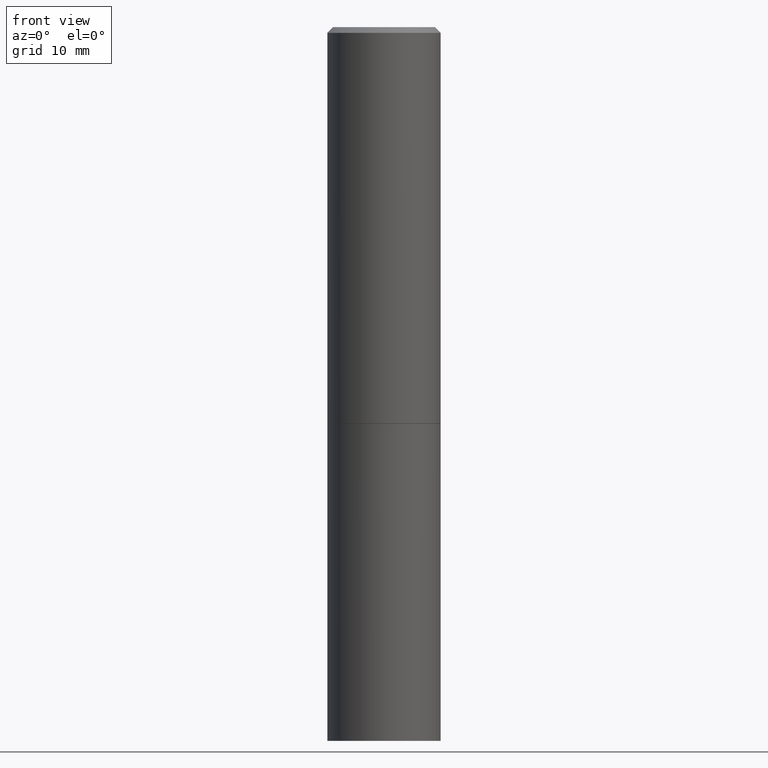
[diagram: clean part render]
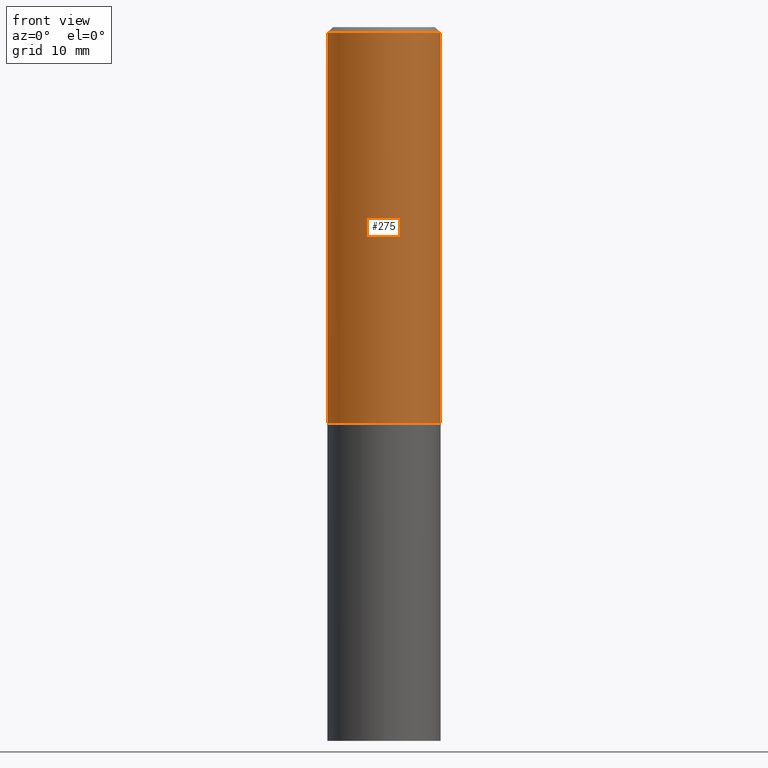
[diagram: same view with one face highlighted and labeled with its STEP entity id]
A machine part, front view. The second image highlights one B-rep face of the part: STEP entity #275.
In plain terms, the highlighted cylindrical surface (partial cylindrical patch) has radius 5 mm, axis along (-0, 0, 1).
Its self-contained STEP definition (entity closure, byte-faithful):
#9 = LINE ( 'NONE', #13, #263 ) ;
#13 = CARTESIAN_POINT ( 'NONE',  ( 0.1968499999999998307, -1.374596203102540425E-15, 9.598753983154291049E-30 ) ) ;
#20 = EDGE_CURVE ( 'NONE', #270, #269, #107, .T. ) ;
#46 = DIRECTION ( 'NONE',  ( 1.000000000000000000, -6.982962677686266711E-15, 4.876176775795935793E-29 ) ) ;
#48 = AXIS2_PLACEMENT_3D ( 'NONE', #160, #300, #308 ) ;
#50 = CARTESIAN_POINT ( 'NONE',  ( -0.1968499999999999417, -1.039921765771237577E-15, -1.376900000000000013 ) ) ;
#68 = ORIENTED_EDGE ( 'NONE', *, *, #211, .T. ) ;
#91 = CARTESIAN_POINT ( 'NONE',  ( -0.1968499999999998307, 1.398703375343756013E-15, -9.682923725166775270E-30 ) ) ;
#107 = CIRCLE ( 'NONE', #48, 0.1968499999999997752 ) ;
#119 = EDGE_CURVE ( 'NONE', #301, #270, #293, .T. ) ;
#125 = ORIENTED_EDGE ( 'NONE', *, *, #119, .F. ) ;
#128 = DIRECTION ( 'NONE',  ( 1.000000000000000000, -6.982962677686265922E-15, 0.000000000000000000 ) ) ;
#133 = CARTESIAN_POINT ( 'NONE',  ( 0.1968499999999999417, -6.182016858555667463E-15, -1.376900000000000013 ) ) ;
#141 = EDGE_CURVE ( 'NONE', #215, #269, #9, .T. ) ;
#143 = DIRECTION ( 'NONE',  ( -2.445468806185136597E-29, 3.491481338843145583E-15, 1.000000000000000000 ) ) ;
#144 = AXIS2_PLACEMENT_3D ( 'NONE', #194, #143, #46 ) ;
#153 = AXIS2_PLACEMENT_3D ( 'NONE', #161, #228, #128 ) ;
#158 = DIRECTION ( 'NONE',  ( -2.445468806185136877E-29, 3.491481338843145188E-15, 1.000000000000000000 ) ) ;
#160 = CARTESIAN_POINT ( 'NONE',  ( 4.890937612370283668E-31, -6.982962677686305168E-17, -0.02000000000000004205 ) ) ;
#161 = CARTESIAN_POINT ( 'NONE',  ( 3.367165999236314681E-29, -4.807420655453126643E-15, -1.376900000000000013 ) ) ;
#168 = CARTESIAN_POINT ( 'NONE',  ( 0.1968499999999997752, -1.420318657638187544E-15, -0.02000000000000004205 ) ) ;
#186 = VECTOR ( 'NONE', #208, 39.37007874015748143 ) ;
#194 = CARTESIAN_POINT ( 'NONE',  ( 0.000000000000000000, 0.000000000000000000, 0.000000000000000000 ) ) ;
#195 = CIRCLE ( 'NONE', #153, 0.1968499999999999417 ) ;
#208 = DIRECTION ( 'NONE',  ( -2.445468806185136877E-29, 3.491481338843145188E-15, 1.000000000000000000 ) ) ;
#211 = EDGE_CURVE ( 'NONE', #301, #215, #195, .T. ) ;
#215 = VERTEX_POINT ( 'NONE', #133 ) ;
#228 = DIRECTION ( 'NONE',  ( -2.445468806185136597E-29, 3.491481338843145583E-15, 1.000000000000000000 ) ) ;
#263 = VECTOR ( 'NONE', #158, 39.37007874015748143 ) ;
#264 = EDGE_LOOP ( 'NONE', ( #125, #68, #326, #285 ) ) ;
#269 = VERTEX_POINT ( 'NONE', #168 ) ;
#270 = VERTEX_POINT ( 'NONE', #279 ) ;
#275 = ADVANCED_FACE ( 'NONE', ( #302 ), #309, .T. ) ;
#279 = CARTESIAN_POINT ( 'NONE',  ( -0.1968499999999997752, 1.304766576325676930E-15, -0.02000000000000004205 ) ) ;
#285 = ORIENTED_EDGE ( 'NONE', *, *, #20, .F. ) ;
#293 = LINE ( 'NONE', #91, #186 ) ;
#300 = DIRECTION ( 'NONE',  ( -2.445468806185136597E-29, 3.491481338843145583E-15, 1.000000000000000000 ) ) ;
#301 = VERTEX_POINT ( 'NONE', #50 ) ;
#302 = FACE_OUTER_BOUND ( 'NONE', #264, .T. ) ;
#308 = DIRECTION ( 'NONE',  ( 1.000000000000000000, -6.982962677686266711E-15, 0.000000000000000000 ) ) ;
#309 = CYLINDRICAL_SURFACE ( 'NONE', #144, 0.1968499999999998307 ) ;
#326 = ORIENTED_EDGE ( 'NONE', *, *, #141, .T. ) ;